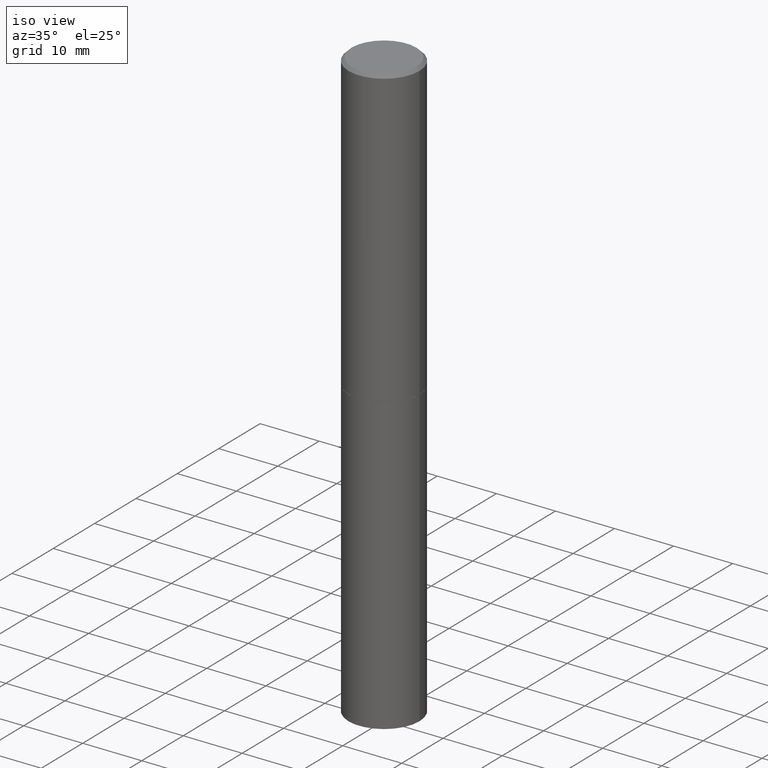
[diagram: clean part render]
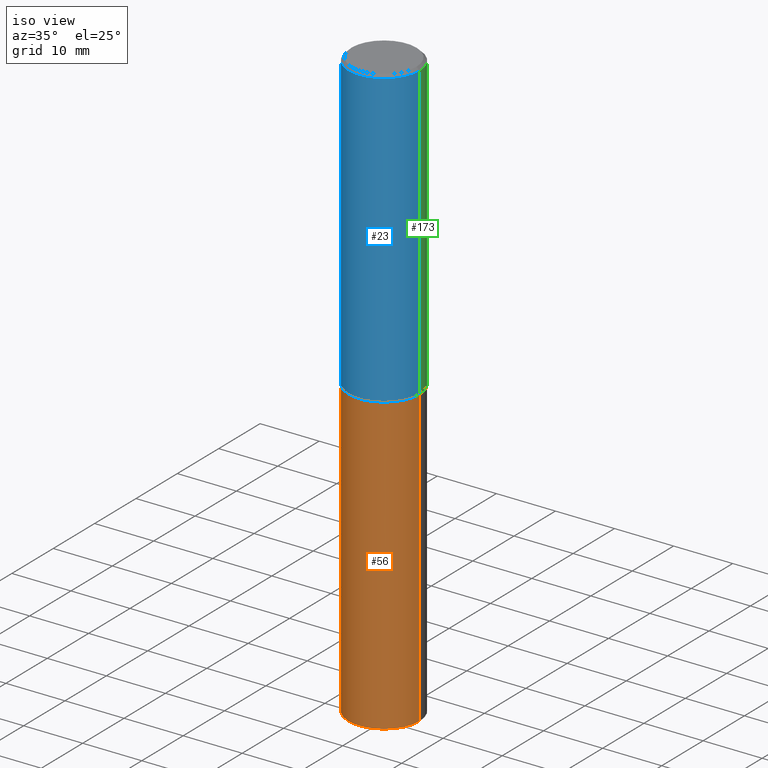
[diagram: same view with three faces highlighted in distinct colors, each labeled with its STEP entity id]
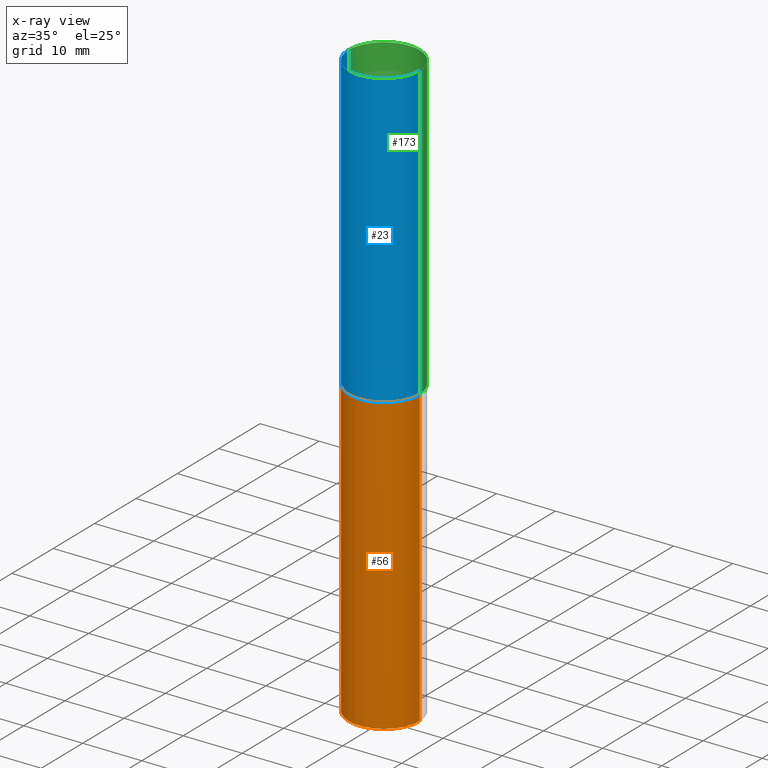
[diagram: x-ray of the same camera — body ghosted, the three highlighted faces saturated]
A machine part, iso view with three faces highlighted in distinct colors.
The next image is the same camera in x-ray (body ghosted, the three faces saturated) — at least one of them is partly hidden behind the body in this view.
Their STEP definitions:

[orange] entity #56 — the highlighted cylindrical surface (partial cylindrical patch) has radius 5.9995 mm, axis along (-0, 0, 1).
#8 = DIRECTION ( 'NONE',  ( 1.000000000000000000, -6.982962677686265133E-15, 0.000000000000000000 ) ) ;
#18 = AXIS2_PLACEMENT_3D ( 'NONE', #320, #237, #287 ) ;
#31 = DIRECTION ( 'NONE',  ( 1.000000000000000000, -6.982962677686266711E-15, 4.876176775795936353E-29 ) ) ;
#37 = CARTESIAN_POINT ( 'NONE',  ( -0.2361999999999999933, 1.678301941865356591E-15, -1.161852468318208757E-29 ) ) ;
#49 = CARTESIAN_POINT ( 'NONE',  ( 0.2361999999999999933, -1.649375784469496131E-15, 1.151752954443000088E-29 ) ) ;
#56 = ADVANCED_FACE ( 'NONE', ( #322 ), #175, .T. ) ;
#64 = DIRECTION ( 'NONE',  ( -2.445468806185136597E-29, 3.491481338843145583E-15, 1.000000000000000000 ) ) ;
#66 = CIRCLE ( 'NONE', #18, 0.2361999999999999933 ) ;
#67 = ORIENTED_EDGE ( 'NONE', *, *, #80, .T. ) ;
#79 = CARTESIAN_POINT ( 'NONE',  ( 0.2361999999999999933, -8.522356799982228232E-15, -1.968500000000000139 ) ) ;
#80 = EDGE_CURVE ( 'NONE', #83, #211, #98, .T. ) ;
#83 = VERTEX_POINT ( 'NONE', #234 ) ;
#92 = CARTESIAN_POINT ( 'NONE',  ( -0.2361999999999999933, -8.631169581403741167E-15, -1.968500000000000139 ) ) ;
#98 = CIRCLE ( 'NONE', #121, 0.2361999999999999933 ) ;
#111 = CARTESIAN_POINT ( 'NONE',  ( 0.000000000000000000, 0.000000000000000000, 0.000000000000000000 ) ) ;
#112 = VERTEX_POINT ( 'NONE', #92 ) ;
#120 = LINE ( 'NONE', #37, #165 ) ;
#121 = AXIS2_PLACEMENT_3D ( 'NONE', #240, #296, #8 ) ;
#141 = AXIS2_PLACEMENT_3D ( 'NONE', #111, #64, #31 ) ;
#142 = EDGE_CURVE ( 'NONE', #112, #324, #66, .T. ) ;
#159 = DIRECTION ( 'NONE',  ( -2.445468806185136877E-29, 3.491481338843145188E-15, 1.000000000000000000 ) ) ;
#165 = VECTOR ( 'NONE', #218, 39.37007874015748143 ) ;
#175 = CYLINDRICAL_SURFACE ( 'NONE', #141, 0.2361999999999999933 ) ;
#181 = CARTESIAN_POINT ( 'NONE',  ( 0.2361999999999999933, -1.539533781549495994E-14, -3.937000000000000277 ) ) ;
#186 = ORIENTED_EDGE ( 'NONE', *, *, #268, .T. ) ;
#206 = EDGE_LOOP ( 'NONE', ( #362, #67, #186, #321 ) ) ;
#208 = EDGE_CURVE ( 'NONE', #83, #112, #120, .T. ) ;
#210 = VECTOR ( 'NONE', #159, 39.37007874015748143 ) ;
#211 = VERTEX_POINT ( 'NONE', #181 ) ;
#218 = DIRECTION ( 'NONE',  ( -2.445468806185136877E-29, 3.491481338843145188E-15, 1.000000000000000000 ) ) ;
#234 = CARTESIAN_POINT ( 'NONE',  ( -0.2361999999999999933, -8.631169581403741167E-15, -3.937000000000000277 ) ) ;
#237 = DIRECTION ( 'NONE',  ( -2.445468806185136597E-29, 3.491481338843145583E-15, 1.000000000000000000 ) ) ;
#240 = CARTESIAN_POINT ( 'NONE',  ( 9.627810689950883669E-29, -1.374596203102546341E-14, -3.937000000000000277 ) ) ;
#268 = EDGE_CURVE ( 'NONE', #211, #324, #315, .T. ) ;
#287 = DIRECTION ( 'NONE',  ( 1.000000000000000000, -6.982962677686269077E-15, 0.000000000000000000 ) ) ;
#296 = DIRECTION ( 'NONE',  ( -2.445468806185136597E-29, 3.491481338843145583E-15, 1.000000000000000000 ) ) ;
#315 = LINE ( 'NONE', #49, #210 ) ;
#320 = CARTESIAN_POINT ( 'NONE',  ( 4.813905344975441835E-29, -6.872981015512731707E-15, -1.968500000000000139 ) ) ;
#321 = ORIENTED_EDGE ( 'NONE', *, *, #142, .F. ) ;
#322 = FACE_OUTER_BOUND ( 'NONE', #206, .T. ) ;
#324 = VERTEX_POINT ( 'NONE', #79 ) ;
#362 = ORIENTED_EDGE ( 'NONE', *, *, #208, .F. ) ;

[blue] entity #23 — the highlighted cylindrical surface (partial cylindrical patch) has radius 5.9995 mm, axis along (-0, 0, 1).
#4 = CARTESIAN_POINT ( 'NONE',  ( -0.2362000000000000210, -1.791357638610017633E-15, -1.967500000000000027 ) ) ;
#6 = DIRECTION ( 'NONE',  ( -2.445468806185136597E-29, 3.491481338843145583E-15, 1.000000000000000000 ) ) ;
#17 = DIRECTION ( 'NONE',  ( -2.445468806185136877E-29, 3.491481338843145188E-15, 1.000000000000000000 ) ) ;
#23 = ADVANCED_FACE ( 'NONE', ( #150 ), #160, .T. ) ;
#34 = ORIENTED_EDGE ( 'NONE', *, *, #61, .F. ) ;
#43 = DIRECTION ( 'NONE',  ( -2.445468806185136597E-29, 3.491481338843145583E-15, 1.000000000000000000 ) ) ;
#45 = CARTESIAN_POINT ( 'NONE',  ( 0.2361999999999999933, -8.518865318643383648E-15, -1.967500000000000027 ) ) ;
#58 = CARTESIAN_POINT ( 'NONE',  ( -0.2361999999999997712, 1.579546157692631452E-15, -0.02000000000000007674 ) ) ;
#59 = ORIENTED_EDGE ( 'NONE', *, *, #286, .T. ) ;
#61 = EDGE_CURVE ( 'NONE', #167, #85, #267, .T. ) ;
#71 = CIRCLE ( 'NONE', #95, 0.2361999999999997712 ) ;
#85 = VERTEX_POINT ( 'NONE', #58 ) ;
#95 = AXIS2_PLACEMENT_3D ( 'NONE', #275, #99, #274 ) ;
#97 = DIRECTION ( 'NONE',  ( 1.000000000000000000, -6.982962677686265133E-15, 0.000000000000000000 ) ) ;
#99 = DIRECTION ( 'NONE',  ( -2.445468806185136597E-29, 3.491481338843145583E-15, 1.000000000000000000 ) ) ;
#101 = VERTEX_POINT ( 'NONE', #270 ) ;
#110 = VECTOR ( 'NONE', #352, 39.37007874015748143 ) ;
#148 = CIRCLE ( 'NONE', #226, 0.2361999999999999933 ) ;
#150 = FACE_OUTER_BOUND ( 'NONE', #203, .T. ) ;
#160 = CYLINDRICAL_SURFACE ( 'NONE', #303, 0.2361999999999998545 ) ;
#167 = VERTEX_POINT ( 'NONE', #4 ) ;
#193 = EDGE_CURVE ( 'NONE', #167, #280, #148, .T. ) ;
#203 = EDGE_LOOP ( 'NONE', ( #34, #283, #59, #242 ) ) ;
#205 = CARTESIAN_POINT ( 'NONE',  ( -0.2361999999999998545, 1.678301941865355605E-15, -1.161852468318208056E-29 ) ) ;
#209 = VECTOR ( 'NONE', #17, 39.37007874015748143 ) ;
#226 = AXIS2_PLACEMENT_3D ( 'NONE', #248, #43, #97 ) ;
#242 = ORIENTED_EDGE ( 'NONE', *, *, #246, .F. ) ;
#246 = EDGE_CURVE ( 'NONE', #85, #101, #71, .T. ) ;
#248 = CARTESIAN_POINT ( 'NONE',  ( 4.811459876169256232E-29, -6.869489534173888700E-15, -1.967500000000000027 ) ) ;
#259 = DIRECTION ( 'NONE',  ( 1.000000000000000000, -6.982962677686266711E-15, 4.876176775795935793E-29 ) ) ;
#267 = LINE ( 'NONE', #205, #110 ) ;
#270 = CARTESIAN_POINT ( 'NONE',  ( 0.2361999999999997712, -1.690279253850497193E-15, -0.02000000000000007674 ) ) ;
#274 = DIRECTION ( 'NONE',  ( 1.000000000000000000, -6.982962677686266711E-15, 0.000000000000000000 ) ) ;
#275 = CARTESIAN_POINT ( 'NONE',  ( 4.890937612370292426E-31, -6.982962677686317493E-17, -0.02000000000000007674 ) ) ;
#276 = CARTESIAN_POINT ( 'NONE',  ( 0.2361999999999998545, -1.649375784469495145E-15, 1.151752954442999387E-29 ) ) ;
#280 = VERTEX_POINT ( 'NONE', #45 ) ;
#282 = CARTESIAN_POINT ( 'NONE',  ( 0.000000000000000000, 0.000000000000000000, 0.000000000000000000 ) ) ;
#283 = ORIENTED_EDGE ( 'NONE', *, *, #193, .T. ) ;
#286 = EDGE_CURVE ( 'NONE', #280, #101, #316, .T. ) ;
#303 = AXIS2_PLACEMENT_3D ( 'NONE', #282, #6, #259 ) ;
#316 = LINE ( 'NONE', #276, #209 ) ;
#352 = DIRECTION ( 'NONE',  ( -2.445468806185136877E-29, 3.491481338843145188E-15, 1.000000000000000000 ) ) ;

[green] entity #173 — the highlighted cylindrical surface (partial cylindrical patch) has radius 5.9995 mm, axis along (-0, 0, 1).
#4 = CARTESIAN_POINT ( 'NONE',  ( -0.2362000000000000210, -1.791357638610017633E-15, -1.967500000000000027 ) ) ;
#13 = AXIS2_PLACEMENT_3D ( 'NONE', #169, #289, #27 ) ;
#15 = ORIENTED_EDGE ( 'NONE', *, *, #323, .F. ) ;
#17 = DIRECTION ( 'NONE',  ( -2.445468806185136877E-29, 3.491481338843145188E-15, 1.000000000000000000 ) ) ;
#27 = DIRECTION ( 'NONE',  ( 1.000000000000000000, -6.982962677686266711E-15, 4.876176775795935793E-29 ) ) ;
#36 = CIRCLE ( 'NONE', #249, 0.2361999999999999933 ) ;
#45 = CARTESIAN_POINT ( 'NONE',  ( 0.2361999999999999933, -8.518865318643383648E-15, -1.967500000000000027 ) ) ;
#53 = DIRECTION ( 'NONE',  ( 1.000000000000000000, -6.982962677686265133E-15, 0.000000000000000000 ) ) ;
#58 = CARTESIAN_POINT ( 'NONE',  ( -0.2361999999999997712, 1.579546157692631452E-15, -0.02000000000000007674 ) ) ;
#61 = EDGE_CURVE ( 'NONE', #167, #85, #267, .T. ) ;
#84 = CYLINDRICAL_SURFACE ( 'NONE', #13, 0.2361999999999998545 ) ;
#85 = VERTEX_POINT ( 'NONE', #58 ) ;
#101 = VERTEX_POINT ( 'NONE', #270 ) ;
#110 = VECTOR ( 'NONE', #352, 39.37007874015748143 ) ;
#157 = DIRECTION ( 'NONE',  ( -2.445468806185136597E-29, 3.491481338843145583E-15, 1.000000000000000000 ) ) ;
#167 = VERTEX_POINT ( 'NONE', #4 ) ;
#169 = CARTESIAN_POINT ( 'NONE',  ( 0.000000000000000000, 0.000000000000000000, 0.000000000000000000 ) ) ;
#173 = ADVANCED_FACE ( 'NONE', ( #344 ), #84, .T. ) ;
#191 = EDGE_LOOP ( 'NONE', ( #345, #328, #15, #298 ) ) ;
#192 = DIRECTION ( 'NONE',  ( -2.445468806185136597E-29, 3.491481338843145583E-15, 1.000000000000000000 ) ) ;
#205 = CARTESIAN_POINT ( 'NONE',  ( -0.2361999999999998545, 1.678301941865355605E-15, -1.161852468318208056E-29 ) ) ;
#209 = VECTOR ( 'NONE', #17, 39.37007874015748143 ) ;
#249 = AXIS2_PLACEMENT_3D ( 'NONE', #340, #157, #53 ) ;
#255 = CIRCLE ( 'NONE', #355, 0.2361999999999997712 ) ;
#256 = DIRECTION ( 'NONE',  ( 1.000000000000000000, -6.982962677686266711E-15, 0.000000000000000000 ) ) ;
#267 = LINE ( 'NONE', #205, #110 ) ;
#270 = CARTESIAN_POINT ( 'NONE',  ( 0.2361999999999997712, -1.690279253850497193E-15, -0.02000000000000007674 ) ) ;
#276 = CARTESIAN_POINT ( 'NONE',  ( 0.2361999999999998545, -1.649375784469495145E-15, 1.151752954442999387E-29 ) ) ;
#280 = VERTEX_POINT ( 'NONE', #45 ) ;
#286 = EDGE_CURVE ( 'NONE', #280, #101, #316, .T. ) ;
#289 = DIRECTION ( 'NONE',  ( -2.445468806185136597E-29, 3.491481338843145583E-15, 1.000000000000000000 ) ) ;
#298 = ORIENTED_EDGE ( 'NONE', *, *, #286, .F. ) ;
#316 = LINE ( 'NONE', #276, #209 ) ;
#323 = EDGE_CURVE ( 'NONE', #101, #85, #255, .T. ) ;
#328 = ORIENTED_EDGE ( 'NONE', *, *, #61, .T. ) ;
#340 = CARTESIAN_POINT ( 'NONE',  ( 4.811459876169256232E-29, -6.869489534173888700E-15, -1.967500000000000027 ) ) ;
#344 = FACE_OUTER_BOUND ( 'NONE', #191, .T. ) ;
#345 = ORIENTED_EDGE ( 'NONE', *, *, #361, .T. ) ;
#352 = DIRECTION ( 'NONE',  ( -2.445468806185136877E-29, 3.491481338843145188E-15, 1.000000000000000000 ) ) ;
#355 = AXIS2_PLACEMENT_3D ( 'NONE', #365, #192, #256 ) ;
#361 = EDGE_CURVE ( 'NONE', #280, #167, #36, .T. ) ;
#365 = CARTESIAN_POINT ( 'NONE',  ( 4.890937612370292426E-31, -6.982962677686317493E-17, -0.02000000000000007674 ) ) ;